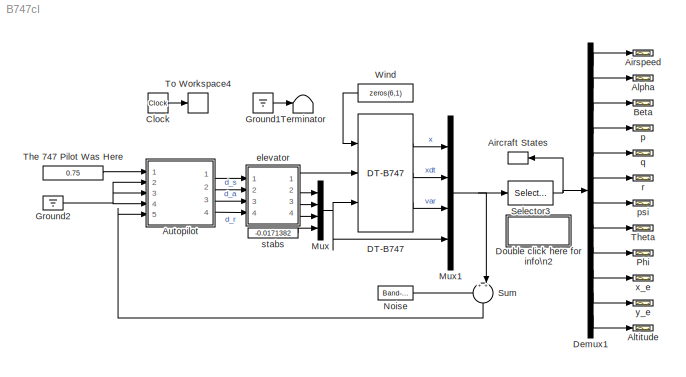
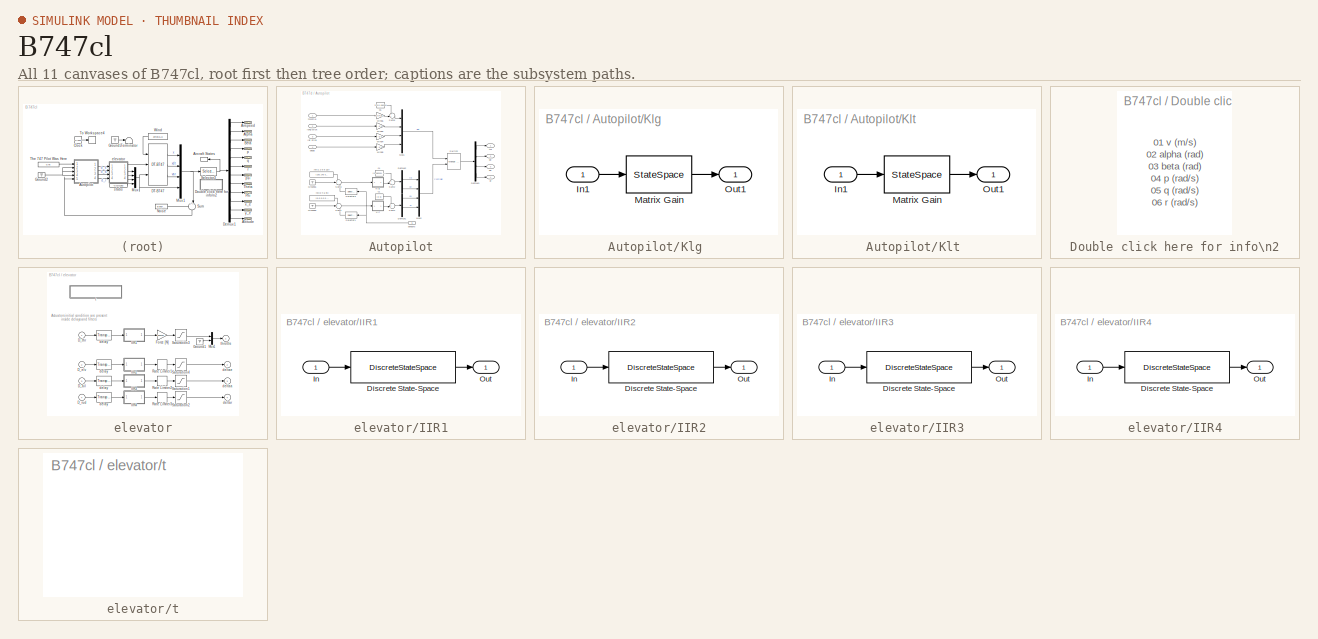
[diagram: thumbnail index - all 11 canvases of the model, root first then tree order]
MODEL B747cl
KIND model
CONFIG AbsTol = auto
CONFIG FixedStep = auto
CONFIG MaxStep = auto
CONFIG RelTol = 1e-3
CONFIG Solver = FixedStepDiscrete
CONFIG SolverMode = Auto
CONFIG StartTime = 0.0
CONFIG StopTime = Inf
BLOCK [ToWorkspace] Aircraft States
  Buffer = 1000
  Decimation = 1
  SampleTime = 0.05
  SaveFormat = Matrix
  VariableName = x
BLOCK [Scope] Airspeed
  DataFormat = StructureWithTime
  Decimation = 1
  Floating = off
  Grid = on
  LimitMaxRows = on
  MaxRows = 5000
  NumInputPorts = 1
  Ports = [1, 0, 0, 0, 0]
  SampleInput = off
  SampleTime = 0
  SaveName = ScopeData5
  SaveToWorkspace = off
  TickLabels = OneTimeTick
  TimeRange = 100
  YMax = 157.655
  YMin = 142.641
  ZoomMode = on
BLOCK [Scope] Alpha
  DataFormat = StructureWithTime
  Decimation = 1
  Floating = off
  Grid = on
  LimitMaxRows = on
  MaxRows = 5000
  NumInputPorts = 1
  Ports = [1, 0, 0, 0, 0]
  SampleInput = off
  SampleTime = 0
  SaveName = ScopeData4
  SaveToWorkspace = off
  TickLabels = OneTimeTick
  TimeRange = 100
  YMax = 0.0488262
  YMin = 0.044176
  ZoomMode = on
BLOCK [Scope] Altitude
  DataFormat = StructureWithTime
  Decimation = 1
  Floating = off
  Grid = on
  LimitMaxRows = on
  MaxRows = 5000
  NumInputPorts = 1
  Ports = [1, 0, 0, 0, 0]
  SampleInput = off
  SampleTime = 0
  SaveName = ScopeData15
  SaveToWorkspace = off
  TickLabels = OneTimeTick
  TimeRange = 100
  YMax = 64.0499
  YMin = 57.9499
  ZoomMode = on
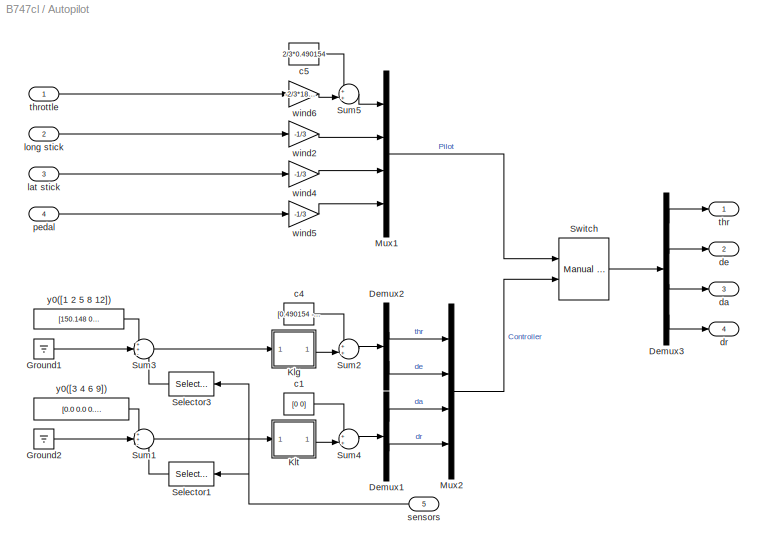
BLOCK [SubSystem] Autopilot
  Ports = [5, 4, 0, 0, 0]
  ShowPortLabels = on
BLOCK [Demux] Autopilot/Demux1
  Outputs = 2
  Ports = [1, 2, 0, 0, 0]
BLOCK [Demux] Autopilot/Demux2
  Outputs = 2
  Ports = [1, 2, 0, 0, 0]
BLOCK [Demux] Autopilot/Demux3
  Outputs = 4
  Ports = [1, 4, 0, 0, 0]
BLOCK [Ground] Autopilot/Ground1
BLOCK [Ground] Autopilot/Ground2
BLOCK [SubSystem] Autopilot/Klg 
  MaskDisplay = disp('Matrix\\nGain')
  MaskEnableString = on
  MaskIconFrame = on
  MaskIconOpaque = on
  MaskIconRotate = none
  MaskIconUnits = autoscale
  MaskPromptString = Matrix
  MaskStyleString = edit
  MaskTunableValueString = on
  MaskType = State Space
  MaskValueString = [0.1942   -0.8227    0.0057    0.6253    0.0090;  0.0283    7.9374   -5.0871  -16.2986   -0.0437]
  MaskVariables = M=@1;
  MaskVisibilityString = on
  Ports = [1, 1, 0, 0, 0]
  ShowPortLabels = on
BLOCK [Inport] Autopilot/Klg /In1
  DataType = auto
  Interpolate = on
  Port = 1
  PortWidth = -1
  SampleTime = -1
  SignalType = auto
BLOCK [StateSpace] Autopilot/Klg /Matrix Gain
  A = []
  B = []
  C = []
  D = M
  X0 = 0
BLOCK [Outport] Autopilot/Klg /Out1
  InitialOutput = []
  OutputWhenDisabled = held
  Port = 1
BLOCK [SubSystem] Autopilot/Klt 
  MaskDisplay = disp('Matrix\\nGain')
  MaskEnableString = on
  MaskIconFrame = on
  MaskIconOpaque = on
  MaskIconRotate = none
  MaskIconUnits = autoscale
  MaskPromptString = Matrix
  MaskStyleString = edit
  MaskTunableValueString = on
  MaskType = State Space
  MaskValueString = [0.2844   -0.1878   -0.2314   -0.1641; 1.1821   -0.4567   -1.8328   -0.4900]
  MaskVariables = M=@1;
  MaskVisibilityString = on
  Ports = [1, 1, 0, 0, 0]
  ShowPortLabels = on
BLOCK [Inport] Autopilot/Klt /In1
  DataType = auto
  Interpolate = on
  Port = 1
  PortWidth = -1
  SampleTime = -1
  SignalType = auto
BLOCK [StateSpace] Autopilot/Klt /Matrix Gain
  A = []
  B = []
  C = []
  D = M
  X0 = 0
BLOCK [Outport] Autopilot/Klt /Out1
  InitialOutput = []
  OutputWhenDisabled = held
  Port = 1
BLOCK [Mux] Autopilot/Mux1
  DisplayOption = none
  Inputs = 4
  Ports = [4, 1, 0, 0, 0]
BLOCK [Mux] Autopilot/Mux2
  DisplayOption = none
  Inputs = 4
  Ports = [4, 1, 0, 0, 0]
BLOCK [Selector] Autopilot/Selector1
  Elements = [3 4 6 9]
  InputPortWidth = 40
BLOCK [Selector] Autopilot/Selector3
  Elements = [1 2 5 8 12]
  InputPortWidth = 40
BLOCK [Sum] Autopilot/Sum1
  IconShape = round
  Inputs = ++-
  Ports = [3, 1, 0, 0, 0]
  SaturateOnIntegerOverflow = on
BLOCK [Sum] Autopilot/Sum2
  IconShape = round
  Inputs = ++|
  Ports = [2, 1, 0, 0, 0]
  SaturateOnIntegerOverflow = on
BLOCK [Sum] Autopilot/Sum3
  IconShape = round
  Inputs = ++-
  Ports = [3, 1, 0, 0, 0]
  SaturateOnIntegerOverflow = on
BLOCK [Sum] Autopilot/Sum4
  IconShape = round
  Inputs = ++|
  Ports = [2, 1, 0, 0, 0]
  SaturateOnIntegerOverflow = on
BLOCK [Sum] Autopilot/Sum5
  IconShape = round
  Inputs = ++|
  Ports = [2, 1, 0, 0, 0]
  SaturateOnIntegerOverflow = on
BLOCK [Reference] Autopilot/Switch  REF=simulink3/Nonlinear/Manual Switch
  Ports = [2, 1, 0, 0, 0]
  SourceBlock = simulink3/Nonlinear/Manual Switch
  SourceType = Manual Switch
  action = 0
  sw = 0
BLOCK [Constant] Autopilot/c1
  Value = [0 0]
BLOCK [Constant] Autopilot/c4
  Value = [0.490154 -1.71374e-004]
BLOCK [Constant] Autopilot/c5
  Value = 2/3*0.490154
BLOCK [Outport] Autopilot/da
  InitialOutput = []
  OutputWhenDisabled = held
  Port = 3
BLOCK [Outport] Autopilot/de
  InitialOutput = []
  OutputWhenDisabled = held
  Port = 2
BLOCK [Outport] Autopilot/dr
  InitialOutput = []
  OutputWhenDisabled = held
  Port = 4
BLOCK [Inport] Autopilot/lat stick
  DataType = auto
  Interpolate = on
  Port = 3
  PortWidth = -1
  SampleTime = -1
  SignalType = auto
BLOCK [Inport] Autopilot/long stick
  DataType = auto
  Interpolate = on
  Port = 2
  PortWidth = -1
  SampleTime = -1
  SignalType = auto
BLOCK [Inport] Autopilot/pedal
  DataType = auto
  Interpolate = on
  Port = 4
  PortWidth = -1
  SampleTime = -1
  SignalType = auto
BLOCK [Inport] Autopilot/sensors
  DataType = auto
  Interpolate = on
  Port = 5
  PortWidth = -1
  SampleTime = -1
  SignalType = auto
BLOCK [Outport] Autopilot/thr
  InitialOutput = []
  OutputWhenDisabled = held
  Port = 1
BLOCK [Inport] Autopilot/throttle
  DataType = auto
  Interpolate = on
  Port = 1
  PortWidth = -1
  SampleTime = -1
  SignalType = auto
BLOCK [Gain] Autopilot/wind2
  Gain = -1/3
  SaturateOnIntegerOverflow = on
BLOCK [Gain] Autopilot/wind4
  Gain = -1/3
  SaturateOnIntegerOverflow = on
BLOCK [Gain] Autopilot/wind5
  Gain = -1/3
  SaturateOnIntegerOverflow = on
BLOCK [Gain] Autopilot/wind6
  Gain = -2/3*188211.4522/368160
  SaturateOnIntegerOverflow = on
BLOCK [Constant] Autopilot/y0([1 2 5 8 12])
  Value = [150.148  0.0464959 0 0.0464959 61]
BLOCK [Constant] Autopilot/y0([3 4 6 9])
  Value = [0.0 0.0 0.0 0.0]
BLOCK [Scope] Beta
  DataFormat = StructureWithTime
  Decimation = 1
  Floating = off
  Grid = on
  LimitMaxRows = on
  MaxRows = 5000
  NumInputPorts = 1
  Ports = [1, 0, 0, 0, 0]
  SampleInput = off
  SampleTime = 0
  SaveName = ScopeData6
  SaveToWorkspace = off
  TickLabels = OneTimeTick
  TimeRange = 100
  YMax = 250000
  YMin = 0
  ZoomMode = on
BLOCK [Clock] Clock
  Decimation = 10
  DisplayTime = off
BLOCK [Reference] DT-B747  REF=airlib/DT-B747  (lib defined in mdl_00852699f85c, mdl_b3a2112ccc5d, +1 more)
  CD_wind = [0.0164  0.2  0  0  0]
  CL_wind = [0.21  4.4  6.6  0.32  0.7]
  CY_body = [0   -0.9    0     0     -0    0.12]
  Cl_body = [0    -0.16    -0.34   0.13    -0.013    0.008]
  Cm_body = [0  -1   -20.5    -1.3    -2.7]
  Cn_body = [0    0.16   -0.026    -0.28     -0.0018   -0.1]
  GM1 = [8.32   59.74   510.95   24675560  44876980   67383260   0   1315126  0   288772  0.05]
  Ports = [3, 3, 0, 0, 0]
  SourceBlock = airlib/DT-B747
  SourceType = Discrete Time General Nonlinear Aircraft Model
  x0 = [150.148  0.0464959 0   0 0 0   0 0.0464959 0   0 0 61]
BLOCK [Demux] Demux1
  Outputs = 12
  Ports = [1, 12, 0, 0, 0]
BLOCK [SubSystem] Double click here for info\n2
  MaskDisplay = disp('Output\\nSignals')
  MaskIconFrame = on
  MaskIconOpaque = on
  MaskIconRotate = none
  MaskIconUnits = autoscale
  Ports = [0, 0, 0, 0, 0]
  ShowPortLabels = off
BLOCK [Ground] Ground1
BLOCK [Ground] Ground2
BLOCK [Mux] Mux
  DisplayOption = none
  Inputs = 4
  Ports = [4, 1, 0, 0, 0]
BLOCK [Mux] Mux1
  DisplayOption = none
  Inputs = [12 12 12 4]
  Ports = [4, 1, 0, 0, 0]
BLOCK [Reference] Noise  REF=simulink3/Sources/Band-Limited\nWhite Noise
  Cov = [1e-7*ones(1,6) 1e-10*ones(1,3) zeros(1,31)]
  Ports = [0, 1, 0, 0, 0]
  SourceBlock = simulink3/Sources/Band-Limited\nWhite Noise
  SourceType = Continuous White Noise.
  Ts = 0.05
  seed = 1:40
BLOCK [Scope] Phi
  DataFormat = StructureWithTime
  Decimation = 1
  Floating = off
  Grid = on
  LimitMaxRows = on
  MaxRows = 5000
  NumInputPorts = 1
  Ports = [1, 0, 0, 0, 0]
  SampleInput = off
  SampleTime = 0
  SaveName = ScopeData12
  SaveToWorkspace = off
  TickLabels = OneTimeTick
  TimeRange = 100
  YMax = -0.0002438
  YMin = -0.0002446
  ZoomMode = on
BLOCK [Selector] Selector3
  Elements = 1:12
  InputPortWidth = 40
BLOCK [Sum] Sum
  IconShape = round
  Inputs = ++|
  Ports = [2, 1, 0, 0, 0]
  SaturateOnIntegerOverflow = on
BLOCK [Terminator] Terminator
BLOCK [Constant] The 747 Pilot Was Here
  Value = 0.75
BLOCK [Scope] Theta
  DataFormat = StructureWithTime
  Decimation = 1
  Floating = off
  Grid = on
  LimitMaxRows = on
  MaxRows = 5000
  NumInputPorts = 1
  Ports = [1, 0, 0, 0, 0]
  SampleInput = off
  SampleTime = 0
  SaveName = ScopeData11
  SaveToWorkspace = off
  TickLabels = OneTimeTick
  TimeRange = 300
  YMax = 0.0467
  YMin = 0.0463
  ZoomMode = on
BLOCK [ToWorkspace] To Workspace4
  Buffer = 1000
  Decimation = 1
  SampleTime = 0.05
  SaveFormat = Matrix
  VariableName = t
BLOCK [Constant] Wind
  Value = zeros(6,1)
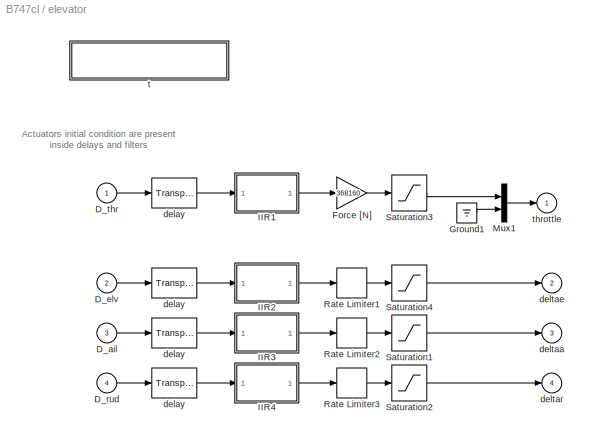
BLOCK [SubSystem] elevator
  MaskDisplay = disp('Cable &\\nactuator\\ndynamics')
  MaskIconFrame = on
  MaskIconOpaque = on
  MaskIconRotate = none
  MaskIconUnits = autoscale
  Ports = [4, 4, 0, 0, 0]
  ShowPortLabels = off
BLOCK [TransportDelay] elevator/ delay
  BufferSize = 1024
  DelayTime = 0.03
  InitialInput = -1.71374e-004
BLOCK [TransportDelay] elevator/ delay 
  BufferSize = 1024
  DelayTime = 0.03
  InitialInput = 0.490154
BLOCK [Inport] elevator/D_ail
  DataType = auto
  Interpolate = on
  Port = 3
  PortWidth = -1
  SampleTime = -1
  SignalType = auto
BLOCK [Inport] elevator/D_elv
  DataType = auto
  Interpolate = on
  Port = 2
  PortWidth = -1
  SampleTime = -1
  SignalType = auto
BLOCK [Inport] elevator/D_rud
  DataType = auto
  Interpolate = on
  Port = 4
  PortWidth = -1
  SampleTime = -1
  SignalType = auto
BLOCK [Inport] elevator/D_thr
  DataType = auto
  Interpolate = on
  Port = 1
  PortWidth = -1
  SampleTime = -1
  SignalType = auto
BLOCK [Gain] elevator/Force [N]
  Gain = 368160
  SaturateOnIntegerOverflow = on
BLOCK [Ground] elevator/Ground1
BLOCK [SubSystem] elevator/IIR1
  MaskCallbackString = |||
  MaskDescription = Each channel has the transfer function \n  (1-exp(-aT))/(1-exp(-aT)(z^-1)) which is a good\n  (pz-matched) approximation of a/(s+a) if 10*a*T<pi
  MaskDisplay = dpoly(a,[1 a],'s')
  MaskEnableString = on,on,on,on
  MaskHelp = <p>\n  Each channel has the transfer function \n  (1-exp(-aT))/(1-exp(-aT)(z^-1)) which is a good\n  (pz-matched) approximation of a/(s+a) if 10*a*T<pi\n</p>\n
  MaskIconFrame = on
  MaskIconOpaque = on
  MaskIconRotate = none
  MaskIconUnits = autoscale
  MaskInitialization = A=[];B=[];C=[];D=[];\nfor i=1:ni,\nA=[A,zeros(size(A,1),1);zeros(1,size(A,2)),exp(-a*T)];\nB=[B,zeros(size(B,1),1);zeros(1,size(B,2)),1-exp(-a*T)];\nC=[C,zeros(size(C,1),1);zeros(1,size(C,2)),exp(-a*T)];\nD=[D,zeros(size(D,1),1);zeros(1,size(D,2)),1-exp(-a*T)];\nend  <repeated x4 — deduplicated; at blocks: IIR1, IIR2, IIR3, IIR4>
  MaskPromptString = Number of Channels|Cutoff Frequency (a)|Initial Condition|Sample Time
  MaskStyleString = edit,edit,edit,edit
  MaskTunableValueString = on,on,on,on
  MaskType = Discrete Time First Order IIR
  MaskValueString = 1|4|0.490154|0.05
  MaskVariables = ni=@1;a=@2;x0=@3;T=@4;
  MaskVisibilityString = on,on,on,on
  Ports = [1, 1, 0, 0, 0]
  ShowPortLabels = on
BLOCK [DiscreteStateSpace] elevator/IIR1/Discrete State-Space
  A = A
  B = B
  C = C
  D = D
  SampleTime = T
  X0 = x0
BLOCK [Inport] elevator/IIR1/In
  DataType = auto
  Interpolate = on
  Port = 1
  PortWidth = -1
  SampleTime = -1
  SignalType = auto
BLOCK [Outport] elevator/IIR1/Out
  InitialOutput = []
  OutputWhenDisabled = held
  Port = 1
BLOCK [SubSystem] elevator/IIR2
  MaskCallbackString = |||
  MaskDescription = Each channel has the transfer function \n  (1-exp(-aT))/(1-exp(-aT)(z^-1)) which is a good\n  (pz-matched) approximation of a/(s+a) if 10*a*T<pi
  MaskDisplay = dpoly(a,[1 a],'s')
  MaskEnableString = on,on,on,on
  MaskHelp = <p>\n  Each channel has the transfer function \n  (1-exp(-aT))/(1-exp(-aT)(z^-1)) which is a good\n  (pz-matched) approximation of a/(s+a) if 10*a*T<pi\n</p>\n
  MaskIconFrame = on
  MaskIconOpaque = on
  MaskIconRotate = none
  MaskIconUnits = autoscale
  MaskPromptString = Number of Channels|Cutoff Frequency (a)|Initial Condition|Sample Time
  MaskStyleString = edit,edit,edit,edit
  MaskTunableValueString = on,on,on,on
  MaskType = Discrete Time First Order IIR
  MaskValueString = 1|15|-1.71374e-004|0.05
  MaskVariables = ni=@1;a=@2;x0=@3;T=@4;
  MaskVisibilityString = on,on,on,on
  Ports = [1, 1, 0, 0, 0]
  ShowPortLabels = on
BLOCK [DiscreteStateSpace] elevator/IIR2/Discrete State-Space
  A = A
  B = B
  C = C
  D = D
  SampleTime = T
  X0 = x0
BLOCK [Inport] elevator/IIR2/In
  DataType = auto
  Interpolate = on
  Port = 1
  PortWidth = -1
  SampleTime = -1
  SignalType = auto
BLOCK [Outport] elevator/IIR2/Out
  InitialOutput = []
  OutputWhenDisabled = held
  Port = 1
BLOCK [SubSystem] elevator/IIR3
  MaskCallbackString = |||
  MaskDescription = Each channel has the transfer function \n  (1-exp(-aT))/(1-exp(-aT)(z^-1)) which is a good\n  (pz-matched) approximation of a/(s+a) if 10*a*T<pi
  MaskDisplay = dpoly(a,[1 a],'s')
  MaskEnableString = on,on,on,on
  MaskHelp = <p>\n  Each channel has the transfer function \n  (1-exp(-aT))/(1-exp(-aT)(z^-1)) which is a good\n  (pz-matched) approximation of a/(s+a) if 10*a*T<pi\n</p>\n
  MaskIconFrame = on
  MaskIconOpaque = on
  MaskIconRotate = none
  MaskIconUnits = autoscale
  MaskPromptString = Number of Channels|Cutoff Frequency (a)|Initial Condition|Sample Time
  MaskStyleString = edit,edit,edit,edit
  MaskTunableValueString = on,on,on,on
  MaskType = Discrete Time First Order IIR
  MaskValueString = 1|40|0|0.05
  MaskVariables = ni=@1;a=@2;x0=@3;T=@4;
  MaskVisibilityString = on,on,on,on
  Ports = [1, 1, 0, 0, 0]
  ShowPortLabels = on
BLOCK [DiscreteStateSpace] elevator/IIR3/Discrete State-Space
  A = A
  B = B
  C = C
  D = D
  SampleTime = T
  X0 = x0
BLOCK [Inport] elevator/IIR3/In
  DataType = auto
  Interpolate = on
  Port = 1
  PortWidth = -1
  SampleTime = -1
  SignalType = auto
BLOCK [Outport] elevator/IIR3/Out
  InitialOutput = []
  OutputWhenDisabled = held
  Port = 1
BLOCK [SubSystem] elevator/IIR4
  MaskCallbackString = |||
  MaskDescription = Each channel has the transfer function \n  (1-exp(-aT))/(1-exp(-aT)(z^-1)) which is a good\n  (pz-matched) approximation of a/(s+a) if 10*a*T<pi
  MaskDisplay = dpoly(a,[1 a],'s')
  MaskEnableString = on,on,on,on
  MaskHelp = <p>\n  Each channel has the transfer function \n  (1-exp(-aT))/(1-exp(-aT)(z^-1)) which is a good\n  (pz-matched) approximation of a/(s+a) if 10*a*T<pi\n</p>\n
  MaskIconFrame = on
  MaskIconOpaque = on
  MaskIconRotate = none
  MaskIconUnits = autoscale
  MaskPromptString = Number of Channels|Cutoff Frequency (a)|Initial Condition|Sample Time
  MaskStyleString = edit,edit,edit,edit
  MaskTunableValueString = on,on,on,on
  MaskType = Discrete Time First Order IIR
  MaskValueString = 1|15|0|0.05
  MaskVariables = ni=@1;a=@2;x0=@3;T=@4;
  MaskVisibilityString = on,on,on,on
  Ports = [1, 1, 0, 0, 0]
  ShowPortLabels = on
BLOCK [DiscreteStateSpace] elevator/IIR4/Discrete State-Space
  A = A
  B = B
  C = C
  D = D
  SampleTime = T
  X0 = x0
BLOCK [Inport] elevator/IIR4/In
  DataType = auto
  Interpolate = on
  Port = 1
  PortWidth = -1
  SampleTime = -1
  SignalType = auto
BLOCK [Outport] elevator/IIR4/Out
  InitialOutput = []
  OutputWhenDisabled = held
  Port = 1
BLOCK [Mux] elevator/Mux1
  DisplayOption = none
  Inputs = [1 5]
  Ports = [2, 1, 0, 0, 0]
BLOCK [RateLimiter] elevator/Rate Limiter1
  FallingSlewLimit = -100*pi/180
  RisingSlewLimit = 100*pi/180
BLOCK [RateLimiter] elevator/Rate Limiter2
  FallingSlewLimit = -100*pi/180
  RisingSlewLimit = 100*pi/180
BLOCK [RateLimiter] elevator/Rate Limiter3
  FallingSlewLimit = -100*pi/180
  RisingSlewLimit = 100*pi/180
BLOCK [Saturate] elevator/Saturation1
  LowerLimit = -20*pi/180
  UpperLimit = 20*pi/180
BLOCK [Saturate] elevator/Saturation2
  LowerLimit = -20*pi/180
  UpperLimit = 20*pi/180
BLOCK [Saturate] elevator/Saturation3
  LowerLimit = 0
  UpperLimit = 245440
BLOCK [Saturate] elevator/Saturation4
  LowerLimit = -20*pi/180
  UpperLimit = 20*pi/180
BLOCK [TransportDelay] elevator/delay
  BufferSize = 1024
  DelayTime = 0.03
  InitialInput = 0
BLOCK [TransportDelay] elevator/delay 
  BufferSize = 1024
  DelayTime = 0.03
  InitialInput = 0
BLOCK [Outport] elevator/deltaa
  InitialOutput = []
  OutputWhenDisabled = held
  Port = 3
BLOCK [Outport] elevator/deltae
  InitialOutput = []
  OutputWhenDisabled = held
  Port = 2
BLOCK [Outport] elevator/deltar
  InitialOutput = []
  OutputWhenDisabled = held
  Port = 4
BLOCK [SubSystem] elevator/t
  MaskDisplay = disp('Actuator & cable dynamics\\nMarc Rauw, October 1997')
  MaskIconFrame = on
  MaskIconOpaque = on
  MaskIconRotate = none
  MaskIconUnits = autoscale
  OpenFcn = fdchelp actuatr
  Ports = [0, 0, 0, 0, 0]
  ShowPortLabels = off
BLOCK [Outport] elevator/throttle
  InitialOutput = []
  OutputWhenDisabled = held
  Port = 1
BLOCK [Scope] p
  DataFormat = StructureWithTime
  Decimation = 1
  Floating = off
  Grid = on
  LimitMaxRows = on
  MaxRows = 5000
  NumInputPorts = 1
  Ports = [1, 0, 0, 0, 0]
  SampleInput = off
  SampleTime = 0
  SaveName = ScopeData7
  SaveToWorkspace = off
  TickLabels = OneTimeTick
  TimeRange = 100
  YMax = 250000
  YMin = 0
  ZoomMode = on
BLOCK [Scope] psi
  DataFormat = StructureWithTime
  Decimation = 1
  Floating = off
  Grid = on
  LimitMaxRows = on
  MaxRows = 5000
  NumInputPorts = 1
  Ports = [1, 0, 0, 0, 0]
  SampleInput = off
  SampleTime = 0
  SaveName = ScopeData10
  SaveToWorkspace = off
  TickLabels = OneTimeTick
  TimeRange = 100
  YMax = 250000
  YMin = 0
  ZoomMode = on
BLOCK [Scope] q
  DataFormat = StructureWithTime
  Decimation = 1
  Floating = off
  Grid = on
  LimitMaxRows = on
  MaxRows = 5000
  NumInputPorts = 1
  Ports = [1, 0, 0, 0, 0]
  SampleInput = off
  SampleTime = 0
  SaveName = ScopeData8
  SaveToWorkspace = off
  TickLabels = OneTimeTick
  TimeRange = 100
  YMax = 250000
  YMin = 0
  ZoomMode = on
BLOCK [Scope] r
  DataFormat = StructureWithTime
  Decimation = 1
  Floating = off
  Grid = on
  LimitMaxRows = on
  MaxRows = 5000
  NumInputPorts = 1
  Ports = [1, 0, 0, 0, 0]
  SampleInput = off
  SampleTime = 0
  SaveName = ScopeData9
  SaveToWorkspace = off
  TickLabels = OneTimeTick
  TimeRange = 100
  YMax = 250000
  YMin = 0
  ZoomMode = on
BLOCK [Constant] stabs
  Value = -0.0171382
BLOCK [Scope] x_e
  DataFormat = StructureWithTime
  Decimation = 1
  Floating = off
  Grid = on
  LimitMaxRows = on
  MaxRows = 5000
  NumInputPorts = 1
  Ports = [1, 0, 0, 0, 0]
  SampleInput = off
  SampleTime = 0
  SaveName = ScopeData13
  SaveToWorkspace = off
  TickLabels = OneTimeTick
  TimeRange = 100
  YMax = 250000
  YMin = 0
  ZoomMode = on
BLOCK [Scope] y_e
  DataFormat = StructureWithTime
  Decimation = 1
  Floating = off
  Grid = on
  LimitMaxRows = on
  MaxRows = 5000
  NumInputPorts = 1
  Ports = [1, 0, 0, 0, 0]
  SampleInput = off
  SampleTime = 0
  SaveName = ScopeData14
  SaveToWorkspace = off
  TickLabels = OneTimeTick
  TimeRange = 100
  YMax = 250000
  YMin = 0
  ZoomMode = on
LINE Autopilot/Demux1:1 -> Autopilot/Mux2:3
LINE Autopilot/Demux1:2 -> Autopilot/Mux2:4
LINE Autopilot/Demux2:1 -> Autopilot/Mux2:1
LINE Autopilot/Demux2:2 -> Autopilot/Mux2:2
LINE Autopilot/Demux3:1 -> Autopilot/thr:1
LINE Autopilot/Demux3:2 -> Autopilot/de:1
LINE Autopilot/Demux3:3 -> Autopilot/da:1
LINE Autopilot/Demux3:4 -> Autopilot/dr:1
LINE Autopilot/Ground1:1 -> Autopilot/Sum3:2
LINE Autopilot/Ground2:1 -> Autopilot/Sum1:2
LINE Autopilot/Klg /In1:1 -> Autopilot/Klg /Matrix Gain:1
LINE Autopilot/Klg /Matrix Gain:1 -> Autopilot/Klg /Out1:1
LINE Autopilot/Klg :1 -> Autopilot/Sum2:2
LINE Autopilot/Klt /In1:1 -> Autopilot/Klt /Matrix Gain:1
LINE Autopilot/Klt /Matrix Gain:1 -> Autopilot/Klt /Out1:1
LINE Autopilot/Klt :1 -> Autopilot/Sum4:2
LINE Autopilot/Mux1:1 -> Autopilot/Switch:1
LINE Autopilot/Mux2:1 -> Autopilot/Switch:2
LINE Autopilot/Selector1:1 -> Autopilot/Sum1:3
LINE Autopilot/Selector3:1 -> Autopilot/Sum3:3
LINE Autopilot/Sum1:1 -> Autopilot/Klt :1
LINE Autopilot/Sum2:1 -> Autopilot/Demux2:1
LINE Autopilot/Sum3:1 -> Autopilot/Klg :1
LINE Autopilot/Sum4:1 -> Autopilot/Demux1:1
LINE Autopilot/Sum5:1 -> Autopilot/Mux1:1
LINE Autopilot/Switch:1 -> Autopilot/Demux3:1
LINE Autopilot/c1:1 -> Autopilot/Sum4:1
LINE Autopilot/c4:1 -> Autopilot/Sum2:1
LINE Autopilot/c5:1 -> Autopilot/Sum5:1
LINE Autopilot/lat stick:1 -> Autopilot/wind4:1
LINE Autopilot/long stick:1 -> Autopilot/wind2:1
LINE Autopilot/pedal:1 -> Autopilot/wind5:1
NET Autopilot/sensors:1 -> Autopilot/Selector1:1, Autopilot/Selector3:1
LINE Autopilot/throttle:1 -> Autopilot/wind6:1
LINE Autopilot/wind2:1 -> Autopilot/Mux1:2
LINE Autopilot/wind4:1 -> Autopilot/Mux1:3
LINE Autopilot/wind5:1 -> Autopilot/Mux1:4
LINE Autopilot/wind6:1 -> Autopilot/Sum5:2
LINE Autopilot/y0([1 2 5 8 12]):1 -> Autopilot/Sum3:1
LINE Autopilot/y0([3 4 6 9]):1 -> Autopilot/Sum1:1
LINE Autopilot:1 -> elevator:1
LINE Autopilot:2 -> elevator:2
LINE Autopilot:3 -> elevator:3
LINE Autopilot:4 -> elevator:4
LINE Clock:1 -> To Workspace4:1
LINE DT-B747:1 -> Mux1:1
LINE DT-B747:2 -> Mux1:2
LINE DT-B747:3 -> Mux1:3
LINE Demux1:1 -> Airspeed:1
LINE Demux1:10 -> x_e:1
LINE Demux1:11 -> y_e:1
LINE Demux1:12 -> Altitude:1
LINE Demux1:2 -> Alpha:1
LINE Demux1:3 -> Beta:1
LINE Demux1:4 -> p:1
LINE Demux1:5 -> q:1
LINE Demux1:6 -> r:1
LINE Demux1:7 -> psi:1
LINE Demux1:8 -> Theta:1
LINE Demux1:9 -> Phi:1
LINE Ground1:1 -> Terminator:1
NET Ground2:1 -> Autopilot:2, Autopilot:3, Autopilot:4
NET Mux1:1 -> Selector3:1, Sum:2
NET Mux:1 -> DT-B747:3, Mux1:4
LINE Noise:1 -> Sum:1
NET Selector3:1 -> Aircraft States:1, Demux1:1
LINE Sum:1 -> Autopilot:5
LINE The 747 Pilot Was Here:1 -> Autopilot:1
LINE Wind:1 -> DT-B747:1
LINE elevator/ delay :1 -> elevator/IIR1:1
LINE elevator/ delay:1 -> elevator/IIR2:1
LINE elevator/D_ail:1 -> elevator/delay:1
LINE elevator/D_elv:1 -> elevator/ delay:1
LINE elevator/D_rud:1 -> elevator/delay :1
LINE elevator/D_thr:1 -> elevator/ delay :1
LINE elevator/Force [N]:1 -> elevator/Saturation3:1
LINE elevator/Ground1:1 -> elevator/Mux1:2
LINE elevator/IIR1/Discrete State-Space:1 -> elevator/IIR1/Out:1
LINE elevator/IIR1/In:1 -> elevator/IIR1/Discrete State-Space:1
LINE elevator/IIR1:1 -> elevator/Force [N]:1
LINE elevator/IIR2/Discrete State-Space:1 -> elevator/IIR2/Out:1
LINE elevator/IIR2/In:1 -> elevator/IIR2/Discrete State-Space:1
LINE elevator/IIR2:1 -> elevator/Rate Limiter1:1
LINE elevator/IIR3/Discrete State-Space:1 -> elevator/IIR3/Out:1
LINE elevator/IIR3/In:1 -> elevator/IIR3/Discrete State-Space:1
LINE elevator/IIR3:1 -> elevator/Rate Limiter2:1
LINE elevator/IIR4/Discrete State-Space:1 -> elevator/IIR4/Out:1
LINE elevator/IIR4/In:1 -> elevator/IIR4/Discrete State-Space:1
LINE elevator/IIR4:1 -> elevator/Rate Limiter3:1
LINE elevator/Mux1:1 -> elevator/throttle:1
LINE elevator/Rate Limiter1:1 -> elevator/Saturation4:1
LINE elevator/Rate Limiter2:1 -> elevator/Saturation1:1
LINE elevator/Rate Limiter3:1 -> elevator/Saturation2:1
LINE elevator/Saturation1:1 -> elevator/deltaa:1
LINE elevator/Saturation2:1 -> elevator/deltar:1
LINE elevator/Saturation3:1 -> elevator/Mux1:1
LINE elevator/Saturation4:1 -> elevator/deltae:1
LINE elevator/delay :1 -> elevator/IIR4:1
LINE elevator/delay:1 -> elevator/IIR3:1
LINE elevator:1 -> DT-B747:2
LINE elevator:2 -> Mux:1
LINE elevator:3 -> Mux:2
LINE elevator:4 -> Mux:3
LINE stabs:1 -> Mux:4
note: NET lines group one-source signal fan-out (src -> all destinations, sorted); 1:1 wires keep LINE
